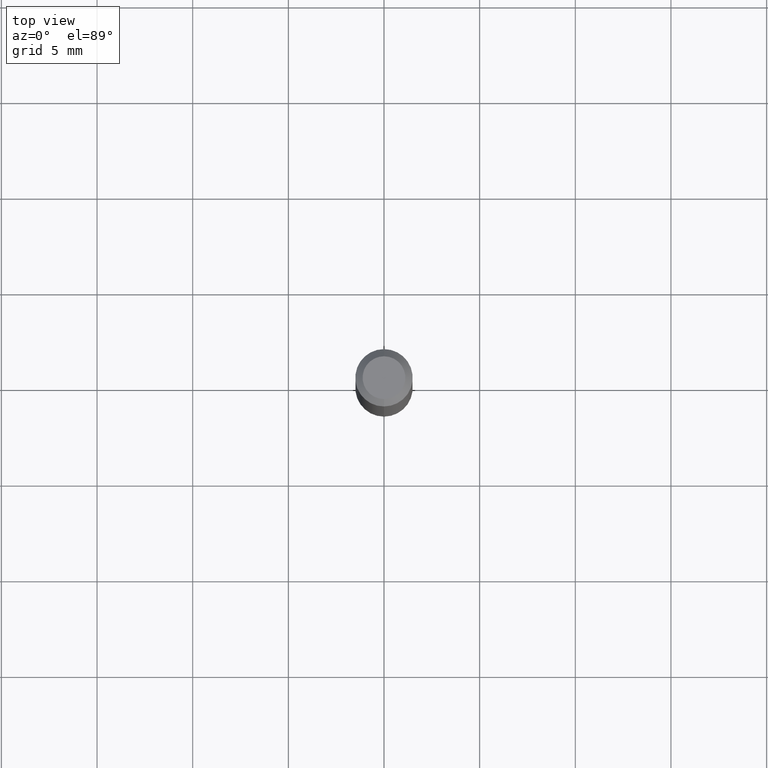
[diagram: clean part render]
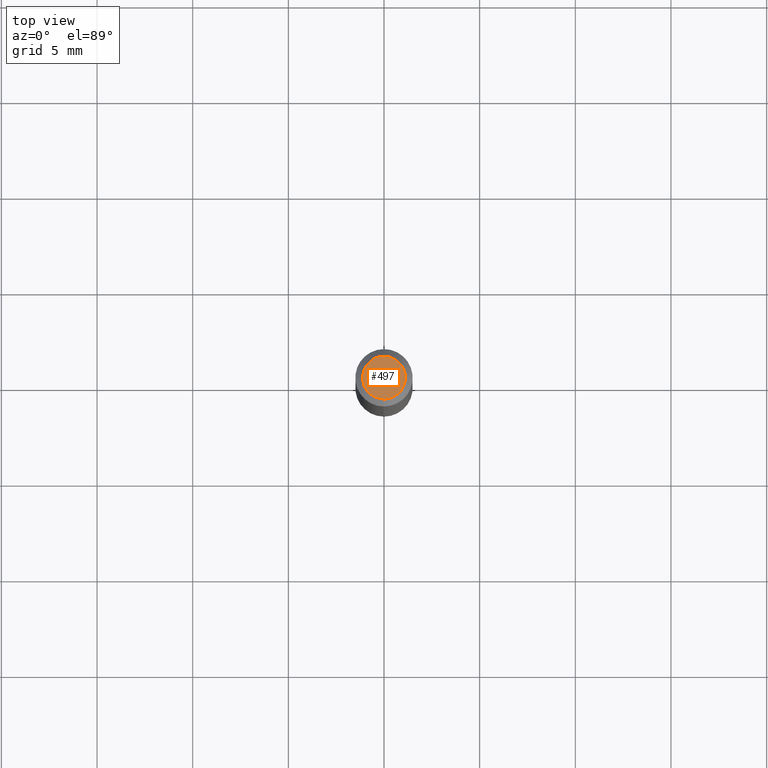
[diagram: same view with one face highlighted and labeled with its STEP entity id]
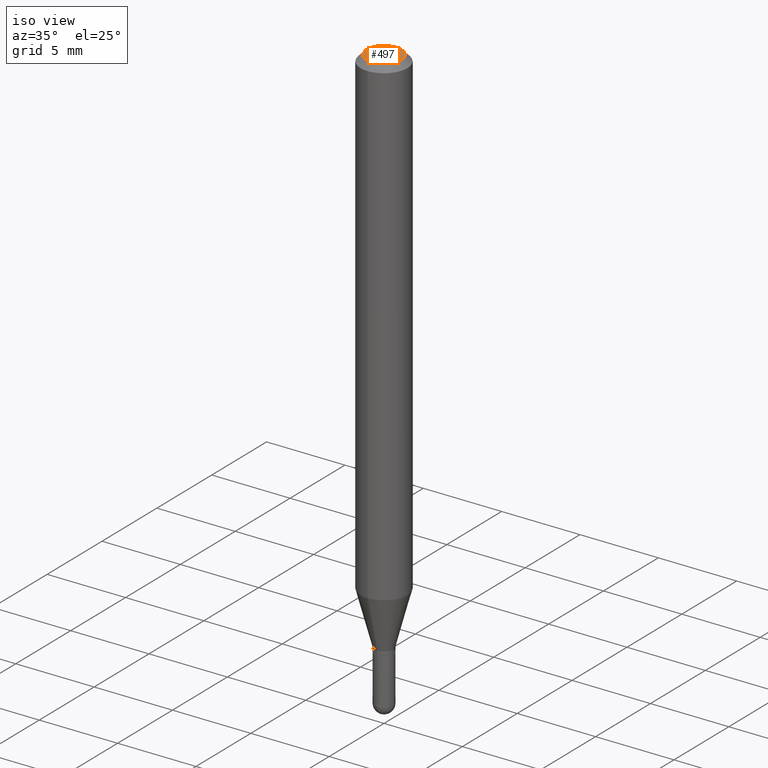
[diagram: same view with one face highlighted and labeled with its STEP entity id]
A machine part, top view. The second image highlights one B-rep face of the part: STEP entity #497.
A second angle (iso view) of the same face is appended — the face is thin or edge-on in the first view.
In plain terms, the highlighted planar face has unit normal (0, -0, -1).
Its self-contained STEP definition (entity closure, byte-faithful):
#7 = DIRECTION ( 'NONE',  ( 2.445403612835547788E-29, -3.491574699430331194E-15, -1.000000000000000000 ) ) ;
#24 = CARTESIAN_POINT ( 'NONE',  ( 3.599717260347271507E-16, 0.04404999999999999888, -2.454645658922201879E-16 ) ) ;
#31 = EDGE_LOOP ( 'NONE', ( #152, #387 ) ) ;
#74 = VERTEX_POINT ( 'NONE', #24 ) ;
#82 = DIRECTION ( 'NONE',  ( 6.982962677686265922E-15, 1.000000000000000000, -3.491574699430331194E-15 ) ) ;
#109 = AXIS2_PLACEMENT_3D ( 'NONE', #241, #197, #274 ) ;
#117 = CARTESIAN_POINT ( 'NONE',  ( 2.241474078699475679E-45, -3.200401823869518620E-31, -9.166070038231407088E-17 ) ) ;
#134 = CIRCLE ( 'NONE', #109, 0.04404999999999999888 ) ;
#139 = EDGE_CURVE ( 'NONE', #193, #74, #263, .T. ) ;
#152 = ORIENTED_EDGE ( 'NONE', *, *, #154, .T. ) ;
#154 = EDGE_CURVE ( 'NONE', #74, #193, #134, .T. ) ;
#193 = VERTEX_POINT ( 'NONE', #287 ) ;
#197 = DIRECTION ( 'NONE',  ( -2.445403612835548349E-29, 3.491574699430331194E-15, 1.000000000000000000 ) ) ;
#238 = AXIS2_PLACEMENT_3D ( 'NONE', #446, #7, #82 ) ;
#241 = CARTESIAN_POINT ( 'NONE',  ( 2.241474078699475679E-45, -3.200401823869518620E-31, -9.166070038231407088E-17 ) ) ;
#263 = CIRCLE ( 'NONE', #395, 0.04404999999999999888 ) ;
#274 = DIRECTION ( 'NONE',  ( -6.982962677686265133E-15, -1.000000000000000000, 3.491574699430331194E-15 ) ) ;
#287 = CARTESIAN_POINT ( 'NONE',  ( -3.536586717851222218E-16, -0.04404999999999999888, 6.214316512759200918E-17 ) ) ;
#361 = PLANE ( 'NONE',  #238 ) ;
#387 = ORIENTED_EDGE ( 'NONE', *, *, #139, .T. ) ;
#395 = AXIS2_PLACEMENT_3D ( 'NONE', #117, #437, #428 ) ;
#428 = DIRECTION ( 'NONE',  ( -6.982962677686265133E-15, -1.000000000000000000, 3.491574699430331194E-15 ) ) ;
#437 = DIRECTION ( 'NONE',  ( -2.445403612835548349E-29, 3.491574699430331194E-15, 1.000000000000000000 ) ) ;
#446 = CARTESIAN_POINT ( 'NONE',  ( 3.075995059520799729E-16, 0.04404999999999999888, -1.996342157010631093E-16 ) ) ;
#482 = FACE_OUTER_BOUND ( 'NONE', #31, .T. ) ;
#497 = ADVANCED_FACE ( 'NONE', ( #482 ), #361, .F. ) ;